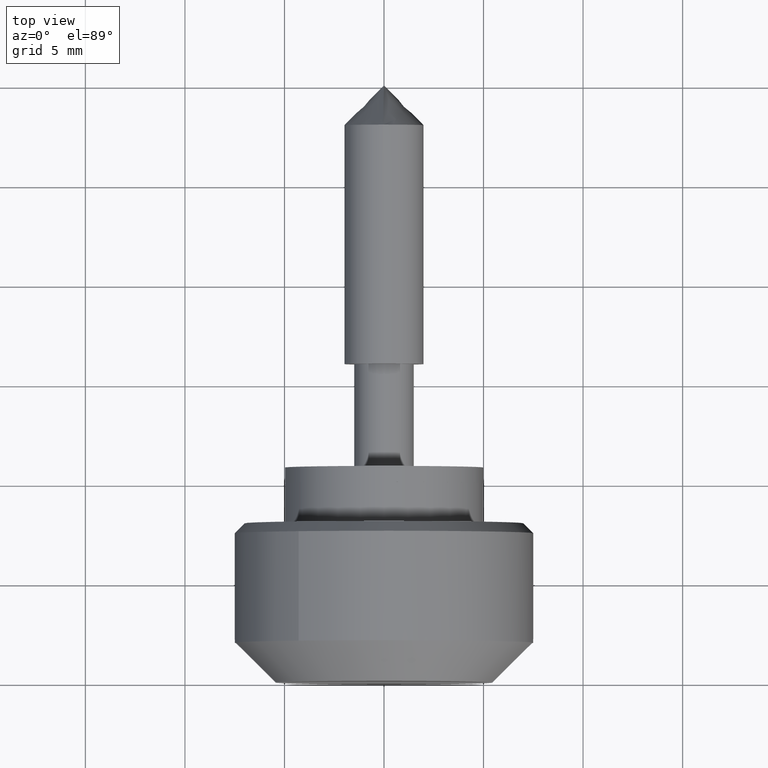
[diagram: clean part render]
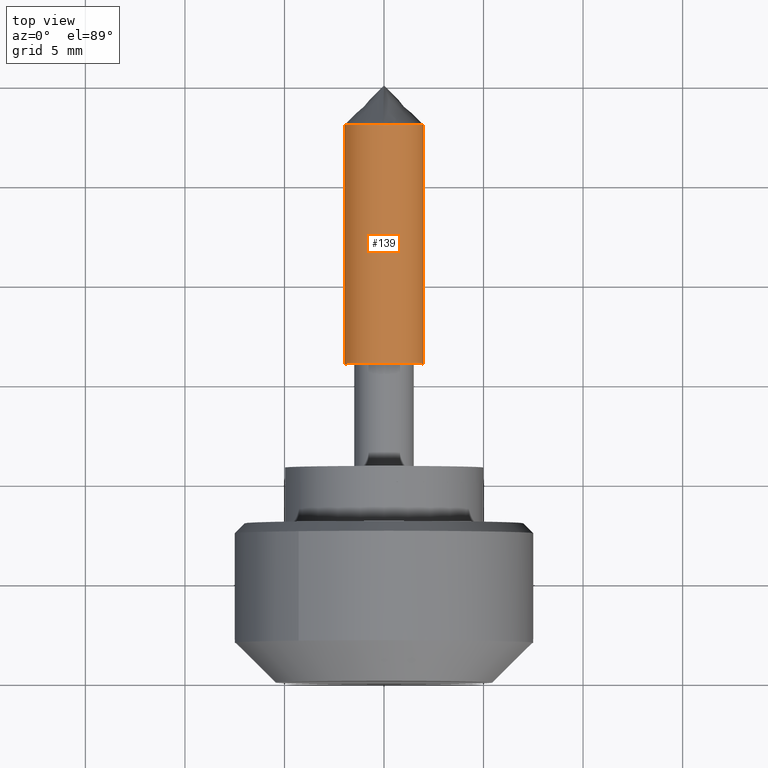
[diagram: same view with one face highlighted and labeled with its STEP entity id]
A machine part, top view. The second image highlights one B-rep face of the part: STEP entity #139.
In plain terms, the highlighted cylindrical surface (partial cylindrical patch) has radius 2 mm, axis along (0, 1, 0).
Its self-contained STEP definition (entity closure, byte-faithful):
#139=ADVANCED_FACE('',(#426),#425,.T.);
#425=CYLINDRICAL_SURFACE('',#690,2.00000000000E+00);
#426=FACE_OUTER_BOUND('',#691,.T.);
#687=CARTESIAN_POINT('',(1.83000000000E+01,-3.75403085890E-14,3.15917146992E-13));
#688=DIRECTION('',(1.00000000000E+00,-5.95688549354E-15,5.01146473287E-14));
#689=DIRECTION('',(-8.02744857153E-27,-9.93009526364E-01,-1.18034234657E-01));
#690=AXIS2_PLACEMENT_3D('',#687,#688,#689);
#691=EDGE_LOOP('',(#900,#901,#902,#903,#904,#905,#906));
#900=ORIENTED_EDGE('',*,*,#1026,.F.);
#901=ORIENTED_EDGE('',*,*,#1028,.F.);
#902=ORIENTED_EDGE('',*,*,#1043,.T.);
#903=ORIENTED_EDGE('',*,*,#1045,.T.);
#904=ORIENTED_EDGE('',*,*,#1046,.T.);
#905=ORIENTED_EDGE('',*,*,#1047,.T.);
#906=ORIENTED_EDGE('',*,*,#1044,.F.);
#1026=EDGE_CURVE('',#1482,#1483,#1484,.T.);
#1028=EDGE_CURVE('',#1490,#1482,#1497,.T.);
#1043=EDGE_CURVE('',#1490,#1590,#1597,.T.);
#1044=EDGE_CURVE('',#1483,#1582,#1603,.T.);
#1045=EDGE_CURVE('',#1590,#1609,#1610,.T.);
#1046=EDGE_CURVE('',#1609,#1616,#1617,.T.);
#1047=EDGE_CURVE('',#1616,#1582,#1623,.T.);
#1482=VERTEX_POINT('',#1991);
#1483=VERTEX_POINT('',#1992);
#1484=CIRCLE('',#1996,2.00000000002E+00);
#1490=VERTEX_POINT('',#1997);
#1497=CIRCLE('',#2005,2.00000000002E+00);
#1582=VERTEX_POINT('',#2060);
#1590=VERTEX_POINT('',#2066);
#1597=(BOUNDED_CURVE() B_SPLINE_CURVE(1,(#2071,#2072),.UNSPECIFIED.,.F.,.F.) B_SPLINE_CURVE_WITH_KNOTS((2,2),(8.33333343261E-02,9.16666667006E-01),.UNSPECIFIED.) CURVE() GEOMETRIC_REPRESENTATION_ITEM() RATIONAL_B_SPLINE_CURVE((1.00000000000E+00,1.00000000000E+00)) REPRESENTATION_ITEM('') );
#1603=(BOUNDED_CURVE() B_SPLINE_CURVE(1,(#2073,#2074),.UNSPECIFIED.,.F.,.F.) B_SPLINE_CURVE_WITH_KNOTS((2,2),(8.33333333333E-02,9.16666666667E-01),.UNSPECIFIED.) CURVE() GEOMETRIC_REPRESENTATION_ITEM() RATIONAL_B_SPLINE_CURVE((7.50000000000E-01,7.50000000000E-01)) REPRESENTATION_ITEM('') );
#1609=VERTEX_POINT('',#2075);
#1610=CIRCLE('',#2079,2.00000000000E+00);
#1616=VERTEX_POINT('',#2080);
#1617=(BOUNDED_CURVE() B_SPLINE_CURVE(2,(#2081,#2082,#2083),.UNSPECIFIED.,.F.,.F.) B_SPLINE_CURVE_WITH_KNOTS((3,3),(0.00000000000E+00,1.00000000000E+00),.UNSPECIFIED.) CURVE() GEOMETRIC_REPRESENTATION_ITEM() RATIONAL_B_SPLINE_CURVE((1.00000000000E+00,9.99943457407E-01,1.00000000000E+00)) REPRESENTATION_ITEM('') );
#1623=(BOUNDED_CURVE() B_SPLINE_CURVE(2,(#2084,#2085,#2086),.UNSPECIFIED.,.F.,.F.) B_SPLINE_CURVE_WITH_KNOTS((3,3),(3.73967488705E-03,1.00000000000E+00),.UNSPECIFIED.) CURVE() GEOMETRIC_REPRESENTATION_ITEM() RATIONAL_B_SPLINE_CURVE((1.00000000000E+00,7.54709695451E-01,1.00000000000E+00)) REPRESENTATION_ITEM('') );
#1991=CARTESIAN_POINT('',(6.00000000000E+00,-2.44921808380E-16,2.00000000005E+00));
#1992=CARTESIAN_POINT('',(6.00000000000E+00,1.98597822183E+00,2.36411722643E-01));
#1993=CARTESIAN_POINT('',(6.00000000000E+00,2.24891216760E-11,2.39055442108E-11));
#1994=DIRECTION('',(-1.00000000000E+00,-1.57009245868E-16,-4.44089209843E-16));
#1995=DIRECTION('',(-4.44089209841E-16,-1.12441167489E-11,1.00000000000E+00));
#1996=AXIS2_PLACEMENT_3D('',#1993,#1994,#1995);
#1997=CARTESIAN_POINT('',(6.00000000000E+00,-1.98601913905E+00,-2.36067743038E-01));
#2002=CARTESIAN_POINT('',(6.00000000000E+00,2.24891216760E-11,2.39055442108E-11));
#2003=DIRECTION('',(-1.00000000000E+00,-1.57009245868E-16,-4.44089209843E-16));
#2004=DIRECTION('',(-4.44089209841E-16,-1.12441167489E-11,1.00000000000E+00));
#2005=AXIS2_PLACEMENT_3D('',#2002,#2003,#2004);
#2060=CARTESIAN_POINT('',(1.80000000000E+01,1.98600766176E+00,2.36164280576E-01));
#2066=CARTESIAN_POINT('',(1.80000000000E+01,-1.98601913906E+00,-2.36067743037E-01));
#2071=CARTESIAN_POINT('',(6.00000001430E+00,-1.98601905273E+00,-2.36068469314E-01));
#2072=CARTESIAN_POINT('',(1.80000000049E+01,-1.98601905273E+00,-2.36068469313E-01));
#2073=CARTESIAN_POINT('',(6.00000000000E+00,1.98601905273E+00,2.36068469313E-01));
#2074=CARTESIAN_POINT('',(1.80000000000E+01,1.98601905273E+00,2.36068469314E-01));
#2075=CARTESIAN_POINT('',(1.80000000000E+01,-1.66533453694E-16,2.00000000000E+00));
#2076=CARTESIAN_POINT('',(1.80000000000E+01,4.44089209850E-16,-4.44089209850E-16));
#2077=DIRECTION('',(-1.00000000000E+00,9.53239756909E-15,-5.00960414811E-14));
#2078=DIRECTION('',(-5.00960414811E-14,6.93889390391E-17,1.00000000000E+00));
#2079=AXIS2_PLACEMENT_3D('',#2076,#2077,#2078);
#2080=CARTESIAN_POINT('',(1.80000000021E+01,5.23538965601E-02,1.99931464783E+00));
#2081=CARTESIAN_POINT('',(1.80000000000E+01,5.82867087928E-16,2.00000000000E+00));
#2082=CARTESIAN_POINT('',(1.80000000000E+01,2.12692057533E-02,2.00000000000E+00));
#2083=CARTESIAN_POINT('',(1.80000000021E+01,5.23538965601E-02,1.99931464783E+00));
#2084=CARTESIAN_POINT('',(1.80000000021E+01,5.23538965601E-02,1.99931464783E+00));
#2085=CARTESIAN_POINT('',(1.80000000000E+01,1.78071325754E+00,1.96257378974E+00));
#2086=CARTESIAN_POINT('',(1.80000000000E+01,1.98600766176E+00,2.36164280576E-01));